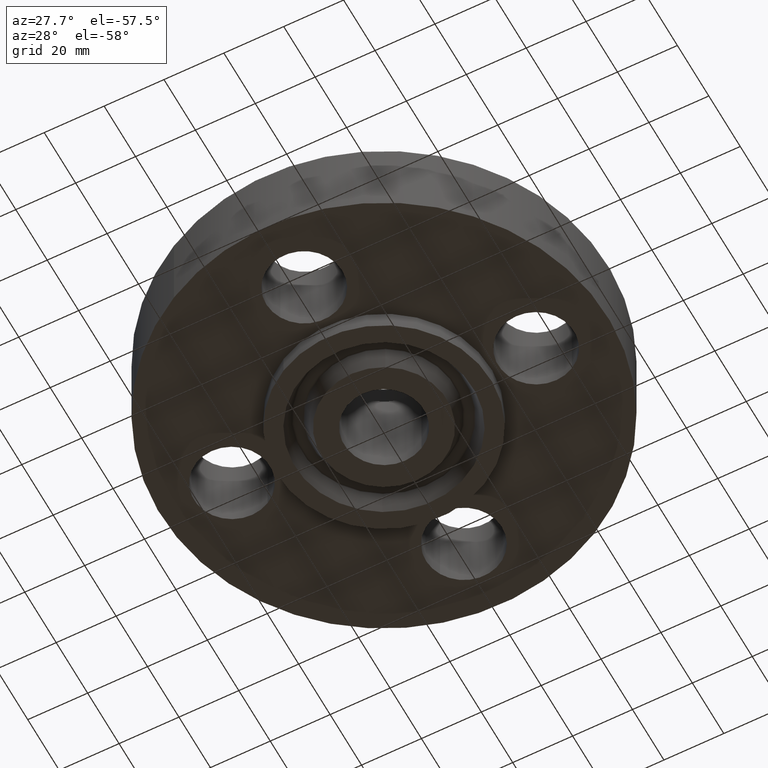
[diagram: clean part render]
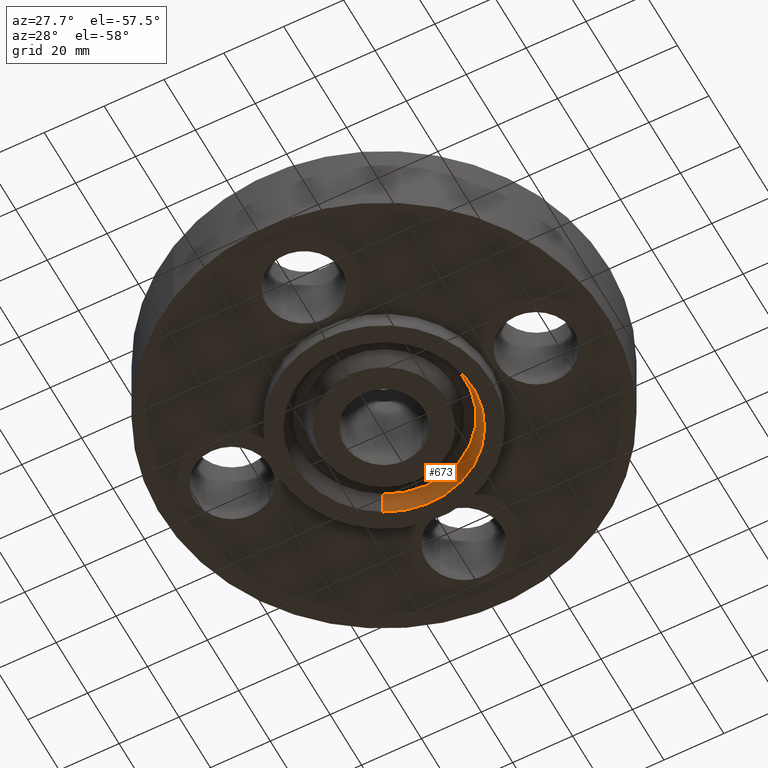
[diagram: same view with one face highlighted and labeled with its STEP entity id]
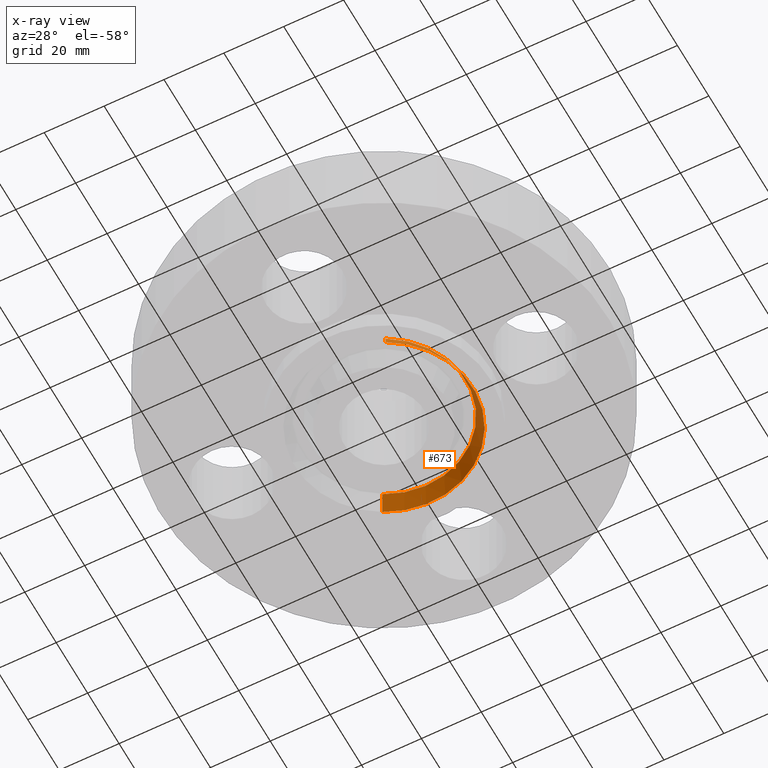
[diagram: x-ray of the same camera — body ghosted, the highlighted face saturated]
A machine part, auxiliary view. The second image highlights one B-rep face of the part: STEP entity #673.
The next image is the same camera in x-ray: the body ghosted, the highlighted face saturated — about 0% of this face is hidden behind the body in this view.
In plain terms, the highlighted conical surface has half-angle 23 deg.
Its self-contained STEP definition (entity closure, byte-faithful):
#220=AXIS2_PLACEMENT_3D('Circle Axis2P3D',#218,#219,$) ;
#646=AXIS2_PLACEMENT_3D('Cone Axis2P3D',#643,#644,#645) ;
#657=AXIS2_PLACEMENT_3D('Circle Axis2P3D',#655,#656,$) ;
#213=CARTESIAN_POINT('Vertex',(0.561886731246,-1.02852676254,-0.250000000001)) ;
#215=CARTESIAN_POINT('Vertex',(-0.561886731246,1.02852676254,-0.250000000001)) ;
#218=CARTESIAN_POINT('Axis2P3D Location',(-1.04902962957E-016,-2.09805925913E-016,-0.250000000001)) ;
#643=CARTESIAN_POINT('Axis2P3D Location',(0.,0.,-0.0188873350169)) ;
#648=CARTESIAN_POINT('Line Origine',(0.538370547572,-0.985480677062,-0.134443667509)) ;
#652=CARTESIAN_POINT('Vertex',(0.514854363898,-0.942434591585,-0.0188873350169)) ;
#655=CARTESIAN_POINT('Axis2P3D Location',(0.,0.,-0.0188873350169)) ;
#659=CARTESIAN_POINT('Vertex',(-0.514854363898,0.942434591585,-0.0188873350169)) ;
#662=CARTESIAN_POINT('Line Origine',(-0.538370547572,0.985480677062,-0.134443667509)) ;
#219=DIRECTION('Axis2P3D Direction',(0.,0.,-0.0393700787402)) ;
#644=DIRECTION('Axis2P3D Direction',(-0.,-0.,-0.0393700787402)) ;
#645=DIRECTION('Axis2P3D XDirection',(0.0188750212049,-0.0345504945626,0.)) ;
#649=DIRECTION('Vector Direction',(0.00737505833565,-0.0134999537303,-0.0362403485611)) ;
#656=DIRECTION('Axis2P3D Direction',(0.,0.,-0.0393700787402)) ;
#663=DIRECTION('Vector Direction',(-0.00737505833565,0.0134999537303,-0.0362403485611)) ;
#650=VECTOR('Line Direction',#649,0.0393700787402) ;
#664=VECTOR('Line Direction',#663,0.0393700787402) ;
#668=ORIENTED_EDGE('',*,*,#222,.T.) ;
#669=ORIENTED_EDGE('',*,*,#654,.T.) ;
#670=ORIENTED_EDGE('',*,*,#661,.T.) ;
#671=ORIENTED_EDGE('',*,*,#666,.F.) ;
#673=ADVANCED_FACE('PartBody',(#672),#647,.F.) ;
#221=CIRCLE('generated circle',#220,1.172) ;
#658=CIRCLE('generated circle',#657,1.07389849401) ;
#647=CONICAL_SURFACE('Cone',#646,1.07389849401,0.401425727959) ;
#222=EDGE_CURVE('',#216,#214,#221,.T.) ;
#654=EDGE_CURVE('',#214,#653,#651,.F.) ;
#661=EDGE_CURVE('',#653,#660,#658,.F.) ;
#666=EDGE_CURVE('',#216,#660,#665,.F.) ;
#667=EDGE_LOOP('',(#668,#669,#670,#671)) ;
#672=FACE_OUTER_BOUND('',#667,.T.) ;
#651=LINE('Line',#648,#650) ;
#665=LINE('Line',#662,#664) ;
#214=VERTEX_POINT('',#213) ;
#216=VERTEX_POINT('',#215) ;
#653=VERTEX_POINT('',#652) ;
#660=VERTEX_POINT('',#659) ;